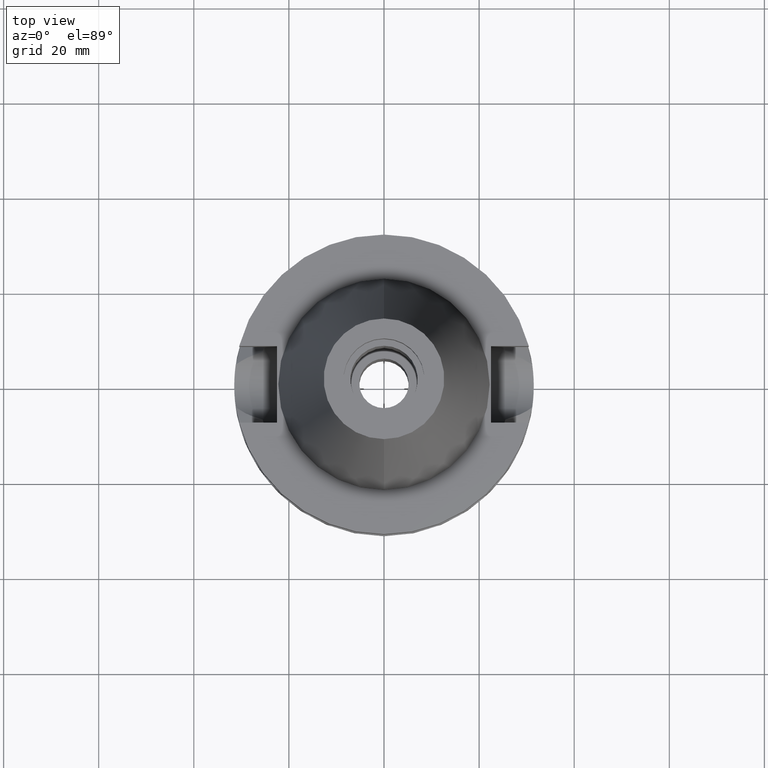
[diagram: clean part render]
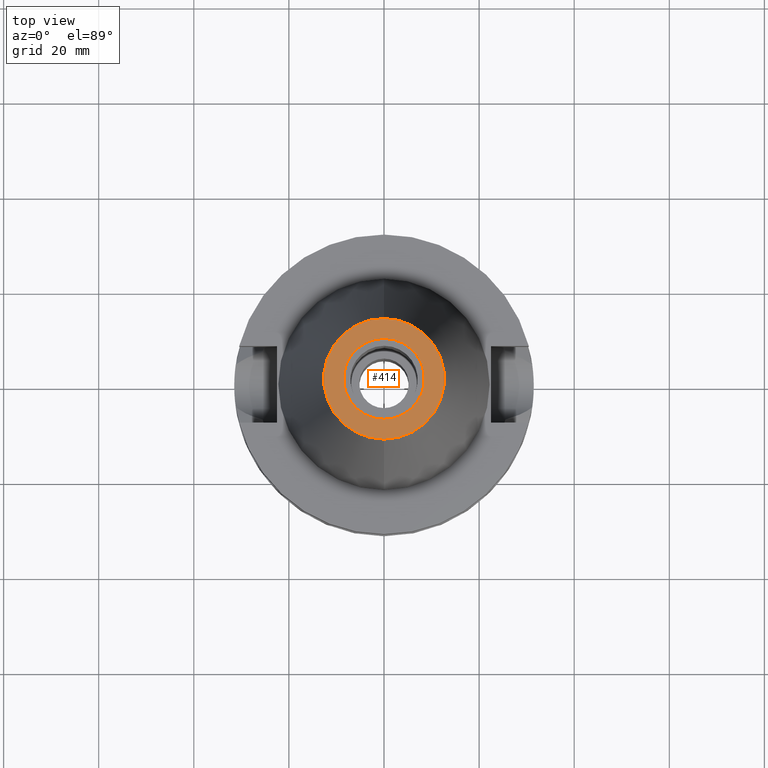
[diagram: same view with one face highlighted and labeled with its STEP entity id]
A machine part, top view. The second image highlights one B-rep face of the part: STEP entity #414.
In plain terms, the highlighted planar face has unit normal (0, 0, -1).
Its self-contained STEP definition (entity closure, byte-faithful):
#134 = DIRECTION ( 'NONE',  ( 0.0000000000000000000, 1.000000000000000000, 0.0000000000000000000 ) ) ;
#142 = DIRECTION ( 'NONE',  ( 0.0000000000000000000, 0.0000000000000000000, -1.000000000000000000 ) ) ;
#226 = EDGE_LOOP ( 'NONE', ( #2972, #2869 ) ) ;
#240 = CARTESIAN_POINT ( 'NONE',  ( 0.0000000000000000000, 0.0000000000000000000, 65.40000000000000568 ) ) ;
#245 = CIRCLE ( 'NONE', #1082, 12.68766899429999917 ) ;
#344 = CIRCLE ( 'NONE', #1773, 12.68766899429999917 ) ;
#390 = CARTESIAN_POINT ( 'NONE',  ( 0.0000000000000000000, 0.0000000000000000000, 65.40000000000000568 ) ) ;
#414 = ADVANCED_FACE ( 'NONE', ( #935, #2343 ), #714, .F. ) ;
#436 = CIRCLE ( 'NONE', #2941, 8.500000000000000000 ) ;
#504 = EDGE_LOOP ( 'NONE', ( #2424, #1415 ) ) ;
#513 = AXIS2_PLACEMENT_3D ( 'NONE', #240, #1880, #2809 ) ;
#542 = AXIS2_PLACEMENT_3D ( 'NONE', #1050, #1281, #134 ) ;
#714 = PLANE ( 'NONE',  #513 ) ;
#776 = CARTESIAN_POINT ( 'NONE',  ( 0.0000000000000000000, -12.68766899429999917, 65.40000000000000568 ) ) ;
#784 = CARTESIAN_POINT ( 'NONE',  ( 0.0000000000000000000, 12.68766899429999917, 65.40000000000000568 ) ) ;
#935 = FACE_OUTER_BOUND ( 'NONE', #504, .T. ) ;
#992 = VERTEX_POINT ( 'NONE', #2621 ) ;
#1023 = VERTEX_POINT ( 'NONE', #776 ) ;
#1050 = CARTESIAN_POINT ( 'NONE',  ( 0.0000000000000000000, 0.0000000000000000000, 65.40000000000000568 ) ) ;
#1082 = AXIS2_PLACEMENT_3D ( 'NONE', #1305, #142, #2949 ) ;
#1116 = CIRCLE ( 'NONE', #542, 8.500000000000000000 ) ;
#1281 = DIRECTION ( 'NONE',  ( 0.0000000000000000000, 0.0000000000000000000, 1.000000000000000000 ) ) ;
#1305 = CARTESIAN_POINT ( 'NONE',  ( 0.0000000000000000000, 0.0000000000000000000, 65.40000000000000568 ) ) ;
#1328 = DIRECTION ( 'NONE',  ( 0.0000000000000000000, 0.0000000000000000000, 1.000000000000000000 ) ) ;
#1415 = ORIENTED_EDGE ( 'NONE', *, *, #2273, .F. ) ;
#1445 = CARTESIAN_POINT ( 'NONE',  ( 0.0000000000000000000, 8.500000000000000000, 65.40000000000000568 ) ) ;
#1532 = EDGE_CURVE ( 'NONE', #2540, #992, #1116, .T. ) ;
#1606 = EDGE_CURVE ( 'NONE', #992, #2540, #436, .T. ) ;
#1773 = AXIS2_PLACEMENT_3D ( 'NONE', #2235, #2035, #2509 ) ;
#1777 = EDGE_CURVE ( 'NONE', #2087, #1023, #344, .T. ) ;
#1880 = DIRECTION ( 'NONE',  ( 0.0000000000000000000, 0.0000000000000000000, -1.000000000000000000 ) ) ;
#2035 = DIRECTION ( 'NONE',  ( 0.0000000000000000000, 0.0000000000000000000, -1.000000000000000000 ) ) ;
#2087 = VERTEX_POINT ( 'NONE', #784 ) ;
#2235 = CARTESIAN_POINT ( 'NONE',  ( 0.0000000000000000000, 0.0000000000000000000, 65.40000000000000568 ) ) ;
#2273 = EDGE_CURVE ( 'NONE', #1023, #2087, #245, .T. ) ;
#2343 = FACE_BOUND ( 'NONE', #226, .T. ) ;
#2424 = ORIENTED_EDGE ( 'NONE', *, *, #1777, .F. ) ;
#2509 = DIRECTION ( 'NONE',  ( 0.0000000000000000000, 1.000000000000000000, 0.0000000000000000000 ) ) ;
#2540 = VERTEX_POINT ( 'NONE', #1445 ) ;
#2621 = CARTESIAN_POINT ( 'NONE',  ( 0.0000000000000000000, -8.500000000000000000, 65.40000000000000568 ) ) ;
#2809 = DIRECTION ( 'NONE',  ( 0.0000000000000000000, -1.000000000000000000, 0.0000000000000000000 ) ) ;
#2869 = ORIENTED_EDGE ( 'NONE', *, *, #1606, .F. ) ;
#2941 = AXIS2_PLACEMENT_3D ( 'NONE', #390, #1328, #2983 ) ;
#2949 = DIRECTION ( 'NONE',  ( 0.0000000000000000000, -1.000000000000000000, 0.0000000000000000000 ) ) ;
#2972 = ORIENTED_EDGE ( 'NONE', *, *, #1532, .F. ) ;
#2983 = DIRECTION ( 'NONE',  ( 0.0000000000000000000, -1.000000000000000000, 0.0000000000000000000 ) ) ;